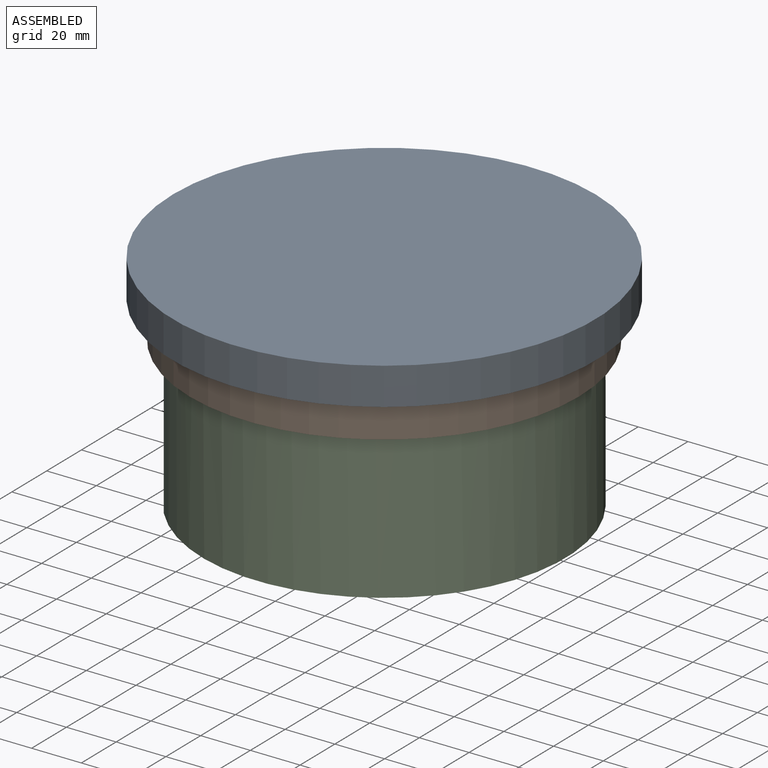
[diagram: assembled view]
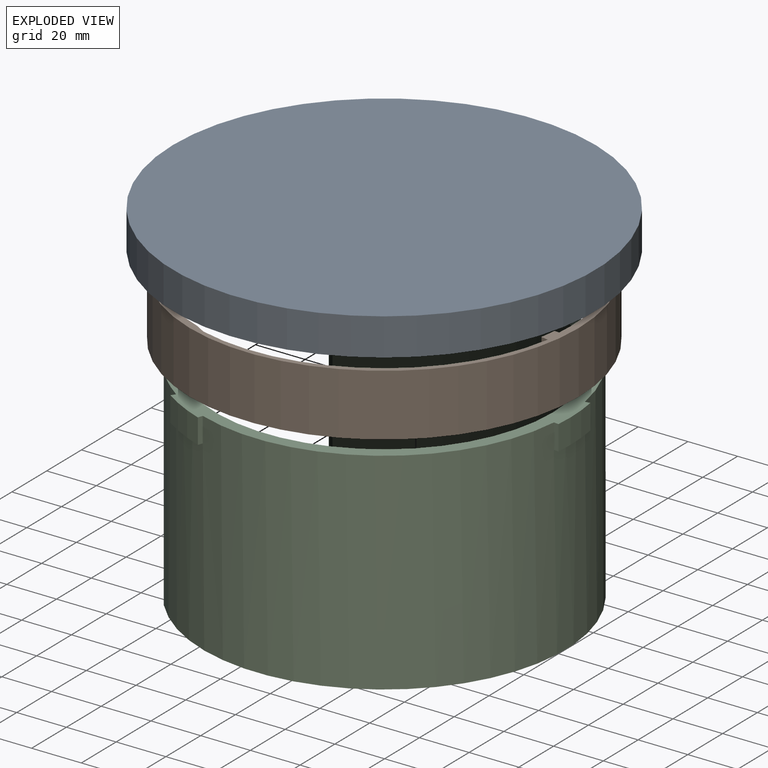
[diagram: exploded view]
GUIDED TOUR — MATED ASSEMBLY (Onshape document 2e85481039ae5bb83b8f77ce, AutoMate assembly 2e85481039ae5bb83b8f77ce_c5175f672cf2ef809be80cd3_7b0b176b4c2be2bc2b8a7882_default)

This assembly has 3 components, labeled P0..P2 below (a component is one placed occurrence of a part; the same part can appear more than once), held together by 2 mates. A mate is a constraint between two components; its type names the relative motion it leaves free:
  FASTENED — locks the two components together rigidly (no relative motion).
Axis/direction vectors are unit vectors and 'through' points are millimeter coordinates, both in the assembly's world frame.

MATES
  1. FASTENED "Fastened 2": P0 <-> P1, direction (0.000, 0.000, -1.000) through (111.84, -42.84, -48.95) mm
  2. FASTENED "Fastened 1": P1 <-> P2, direction (0.000, 0.000, 1.000) through (111.84, -42.84, -48.95) mm

ASSEMBLY ORDER
  1. P1 — the base component [order heuristic]
  2. P0 [order heuristic]
  3. P2 [order heuristic]
Order-tag legend:
  [order heuristic] — this assembly is geometrically interlocked (no collision-free removal order exists), so components are listed in mate-graph order; insertion feasibility is not verified.

Of the 3 components, 2 carry the full construction recipe — the FeatureScript program that regenerates the part's solid from scratch; the rest are supplied as boundary geometry only.
Each toured component is shown spotlighted twice — in the assembled view, then in the exploded view, where a leader line traces a displaced component back to its assembled socket (saturated green if recipe-attached, orange if geometry-only; every other component desaturated gray) — followed by its recipe or geometry summary and the mates that hold it.
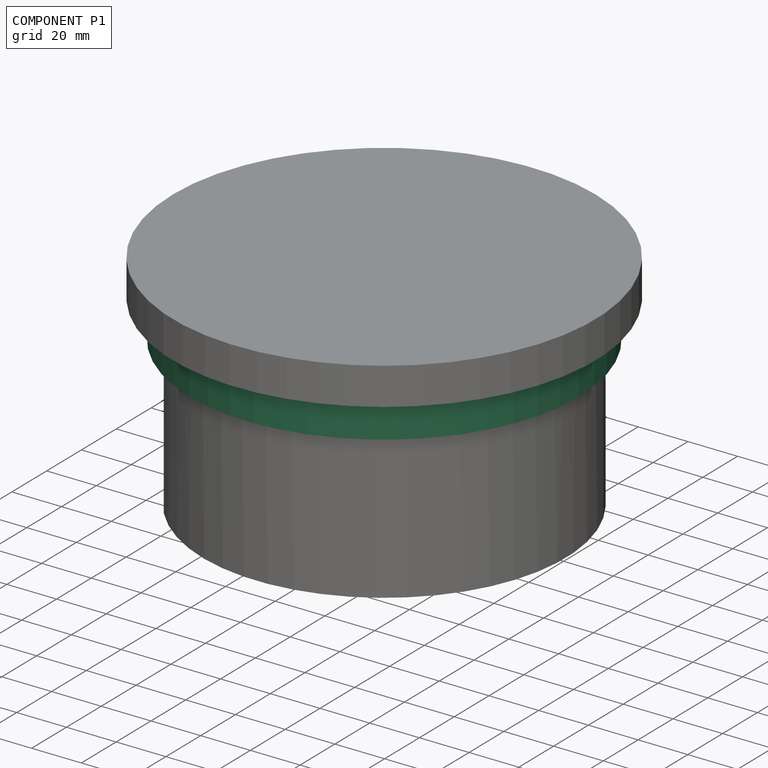
[diagram: component P1 — assembled]
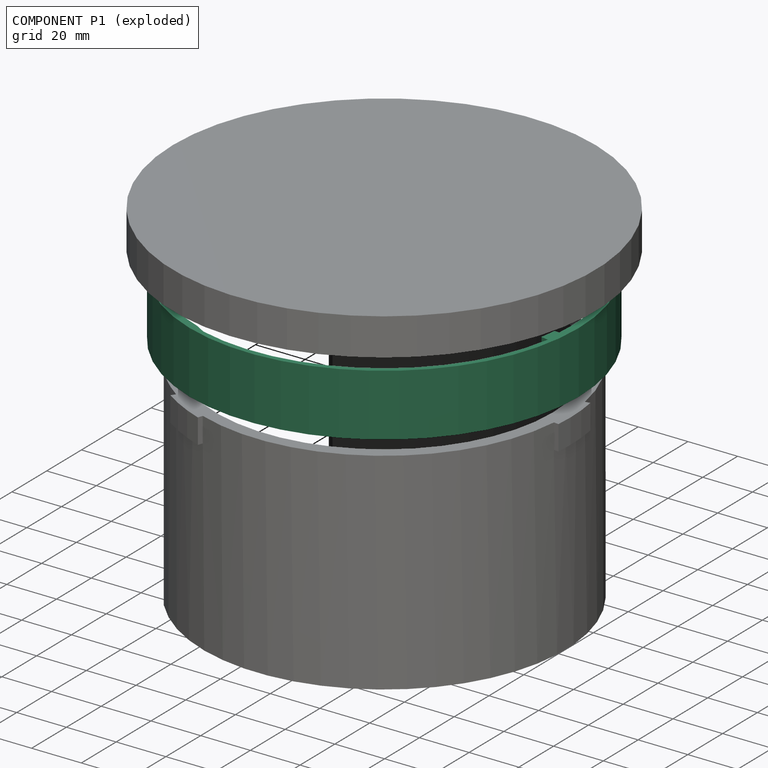
[diagram: component P1 — exploded]
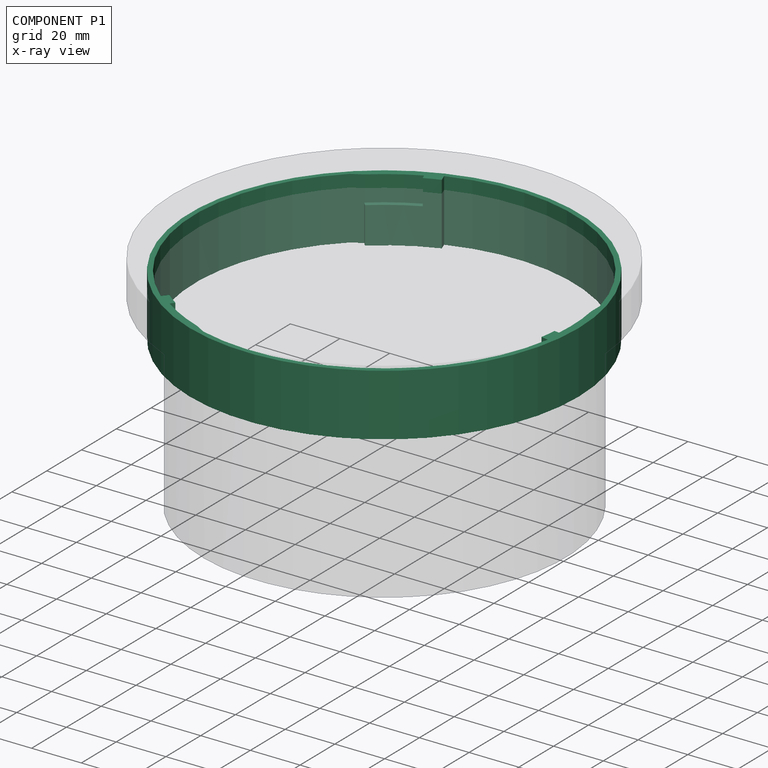
[diagram: component P1 — x-ray view]
COMPONENT P1 — recipe-attached (CADFS 00767659, mesh-verified: the recipe's output STEP matches this component's geometry to below the mesh-comparison resolution (tessellation chordal tolerance ~0.334 mm)).
Held by: FASTENED mate "Fastened 2" to P0; FASTENED mate "Fastened 1" to P2.
Construction recipe (FeatureScript — the CAD program that rebuilds this solid; sketch coordinates are in the units given by the * unit suffixes, e.g. mm):

FeatureScript 1511;
import(path : "onshape/std/geometry.fs", version : "1511.0");
import(path : "onshape/std/common.fs", version : "1511.0");
const mm = millimeter;
const VERTEX = EntityType.VERTEX;
const EDGE = EntityType.EDGE;
const FACE = EntityType.FACE;
const BODY = EntityType.BODY;
function v(x, y){return vector(x, y);}
function OD(order){return orderDisambiguation(order);}
function OSD(set){return originalSetDisambiguation(set);}
function TD(topology){return topologyDisambiguation(topology);}
function TDD(query){return trueDependencyDisambiguation(query);}
function sQuery(a, b, c) {return sketchEntityQuery(a, b, c);}

annotation { "Feature Type Name" : "Feature", "Feature Type Description" : "" }
export const myFeature = defineFeature(function(context is Context, id is Id, definition is map)
    precondition{}
    {
        {
            var Q0;
            Q0=qCreatedBy(makeId("Top.planeOp"),FACE);
            var sketch = newSketch(context, id + "F0", { "sketchPlane" : qUnion([Q0])});
            skArc(sketch, "E0", {"start": v(-31.8, 68.2) * mm, "mid": v(-40.43, 63.47) * mm, "end": v(-48.37, 57.64) * mm});
            skCircle(sketch, "E1", {"center": v(0, 0) * mm, "radius": 78.25 * mm});
            skArc(sketch, "E2", {"start": v(-25.05, 68.83) * mm, "mid": v(-36.63, 63.44) * mm, "end": v(-47.08, 56.11) * mm});
            skLineSegment(sketch, "E3", {"start": v(-47.08, 56.11) * mm, "end": v(-48.37, 57.64) * mm});
            skLineSegment(sketch, "E4", {"start": v(-48.37, 57.64) * mm, "end": v(-52.6, 55.2) * mm});
            skArc(sketch, "E5.trimOffspring", {"start": v(-52.6, 55.2) * mm, "mid": v(-76.21, -2.4) * mm, "end": v(-49.01, -58.41) * mm});
            skLineSegment(sketch, "E6", {"start": v(-25.05, 68.83) * mm, "end": v(-26.08, 71.65) * mm});
            skLineSegment(sketch, "E7", {"start": v(-31.8, 68.2) * mm, "end": v(-30.96, 66.39) * mm});
            skLineSegment(sketch, "E8.1.0", {"start": v(74.1, 13.07) * mm, "end": v(74.1, 17.95) * mm});
            skArc(sketch, "E8.1.1", {"start": v(74.96, -6.56) * mm, "mid": v(75.18, 3.28) * mm, "end": v(74.1, 13.07) * mm});
            skLineSegment(sketch, "E8.1.2", {"start": v(72.14, 12.72) * mm, "end": v(74.1, 13.07) * mm});
            skArc(sketch, "E8.1.3", {"start": v(72.14, -12.72) * mm, "mid": v(73.25, 0) * mm, "end": v(72.14, 12.72) * mm});
            skLineSegment(sketch, "E8.1.4", {"start": v(74.96, -6.56) * mm, "end": v(72.97, -6.38) * mm});
            skLineSegment(sketch, "E8.1.5", {"start": v(72.14, -12.72) * mm, "end": v(75.1, -13.24) * mm});
            skLineSegment(sketch, "E8.2.0", {"start": v(-25.74, -70.71) * mm, "end": v(-21.5, -73.15) * mm});
            skArc(sketch, "E8.2.1", {"start": v(-43.16, -61.64) * mm, "mid": v(-34.75, -66.75) * mm, "end": v(-25.74, -70.71) * mm});
            skLineSegment(sketch, "E8.2.2", {"start": v(-25.05, -68.83) * mm, "end": v(-25.74, -70.71) * mm});
            skArc(sketch, "E8.2.3", {"start": v(-47.08, -56.11) * mm, "mid": v(-36.62, -63.44) * mm, "end": v(-25.05, -68.83) * mm});
            skLineSegment(sketch, "E8.2.4", {"start": v(-43.16, -61.64) * mm, "end": v(-42.01, -60) * mm});
            skLineSegment(sketch, "E8.2.5", {"start": v(-47.08, -56.11) * mm, "end": v(-49.01, -58.41) * mm});
            skLineSegment(sketch, "E8.anchor1", {"start": v(0, 0) * mm, "end": v(-52.6, 55.2) * mm, "construction": true});
            skLineSegment(sketch, "E8.anchor2", {"start": v(0, 0) * mm, "end": v(-21.5, -73.15) * mm, "construction": true});
            skArc(sketch, "E9.trimOffspring", {"start": v(74.1, 17.95) * mm, "mid": v(36.02, 67.2) * mm, "end": v(-26.08, 71.65) * mm});
            skArc(sketch, "E10.trimOffspring", {"start": v(-21.5, -73.15) * mm, "mid": v(40.19, -64.8) * mm, "end": v(75.1, -13.24) * mm});
            skSolve(sketch);
        }
        {
            var Q0;
            Q0=makeQuery(id+"F0.imprint","IMPRINT",FACE,{"disambiguationData":[TD([[makeQuery(id+"F0.imprint","IMPRINT",EDGE,{"derivedFrom":sQuery(id+"F0.wireOp",EDGE,"E0")}),-1.0]])]});
            var Q1;
            Q1=makeQuery(id+"F0.imprint","IMPRINT",FACE,{"disambiguationData":[TD([[makeQuery(id+"F0.imprint","IMPRINT",EDGE,{"derivedFrom":sQuery(id+"F0.wireOp",EDGE,"E8.1.1")}),1.0]])]});
            var Q2;
            Q2=makeQuery(id+"F0.imprint","IMPRINT",FACE,{"disambiguationData":[TD([[makeQuery(id+"F0.imprint","IMPRINT",EDGE,{"derivedFrom":sQuery(id+"F0.wireOp",EDGE,"E8.2.1")}),1.0]])]});
            var Q3;
            Q3=makeQuery(id+"F0.imprint","IMPRINT",FACE,{"disambiguationData":[TD([[makeQuery(id+"F0.imprint","IMPRINT",EDGE,{"derivedFrom":sQuery(id+"F0.wireOp",EDGE,"E0")}),1.0]])]});
            extrude(context, id + "F1", {"entities" : qUnion([Q0, Q1, Q2, Q3]), "oppositeDirection" : true, "depth" : 25 * mm, "offsetDistance" : 25 * mm});
        }
        {
            var Q0;
            Q0=makeQuery(id+"F0.imprint","IMPRINT",FACE,{"disambiguationData":[TD([[makeQuery(id+"F0.imprint","IMPRINT",EDGE,{"derivedFrom":sQuery(id+"F0.wireOp",EDGE,"E8.1.1")}),1.0]])]});
            var Q1;
            Q1=makeQuery(id+"F0.imprint","IMPRINT",FACE,{"disambiguationData":[TD([[makeQuery(id+"F0.imprint","IMPRINT",EDGE,{"derivedFrom":sQuery(id+"F0.wireOp",EDGE,"E0")}),1.0]])]});
            var Q2;
            Q2=makeQuery(id+"F0.imprint","IMPRINT",FACE,{"disambiguationData":[TD([[makeQuery(id+"F0.imprint","IMPRINT",EDGE,{"derivedFrom":sQuery(id+"F0.wireOp",EDGE,"E8.2.1")}),1.0]])]});
            extrude(context, id + "F2", {"entities" : qUnion([Q0, Q1, Q2]), "operationType" : NewBodyOperationType.REMOVE, "oppositeDirection" : true, "depth" : 10.25 * mm, "offsetDistance" : 25 * mm});
        }
    });
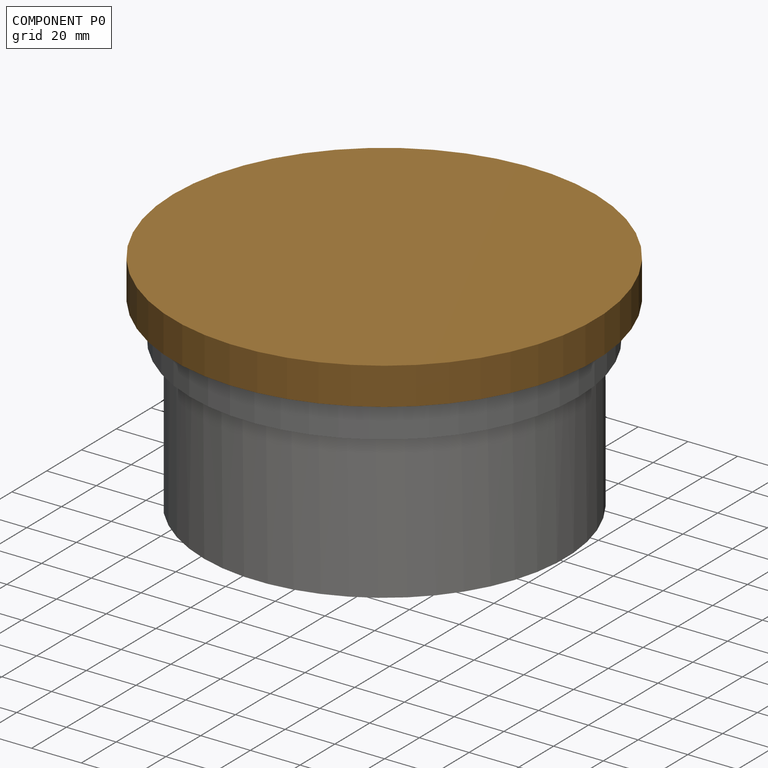
[diagram: component P0 — assembled]
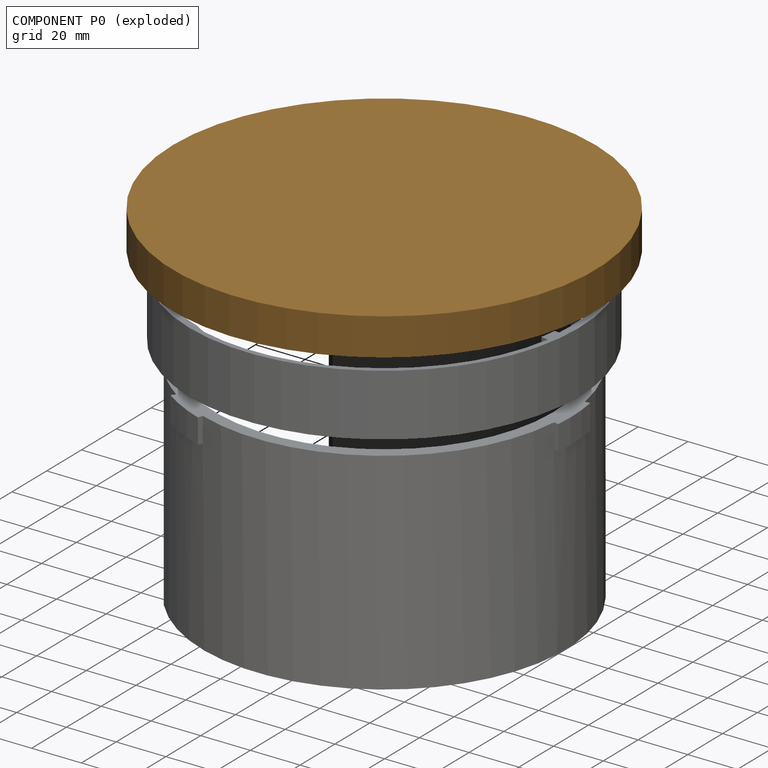
[diagram: component P0 — exploded]
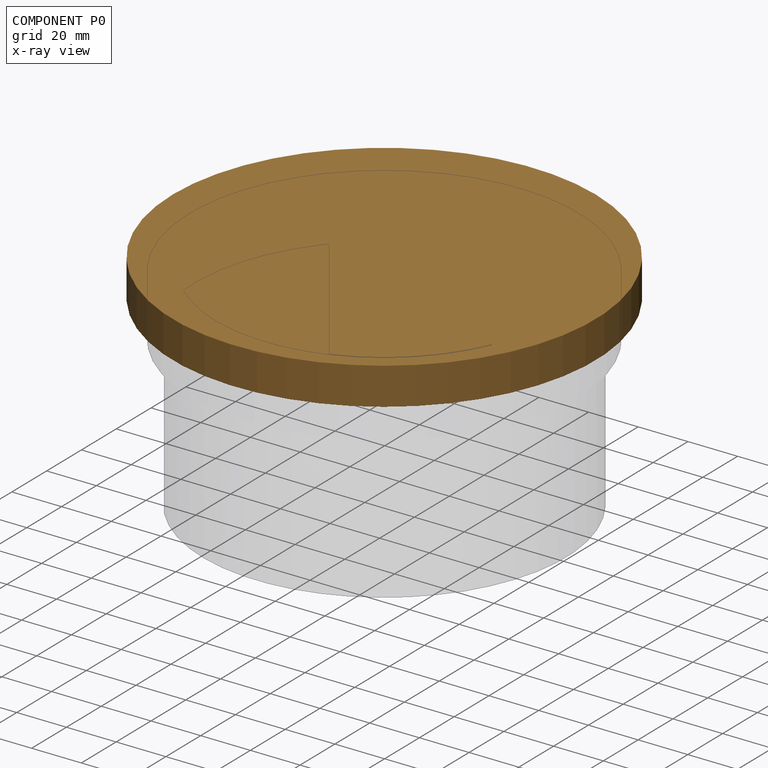
[diagram: component P0 — x-ray view]
COMPONENT P0 — geometry summary (no construction recipe available for this part):
  bounding box: 170.0 x 170.0 x 15.0 mm
  B-rep topology: 1 solid, 31 faces, 138 edges
  volume: 123079 mm^3 (28% of its bounding box)
Held by: FASTENED mate "Fastened 2" to P1.
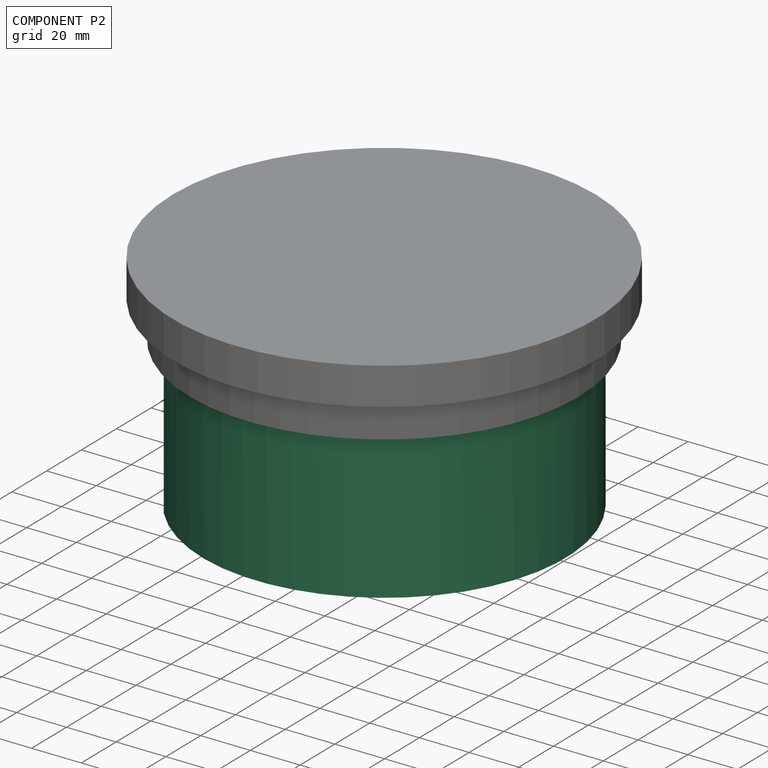
[diagram: component P2 — assembled]
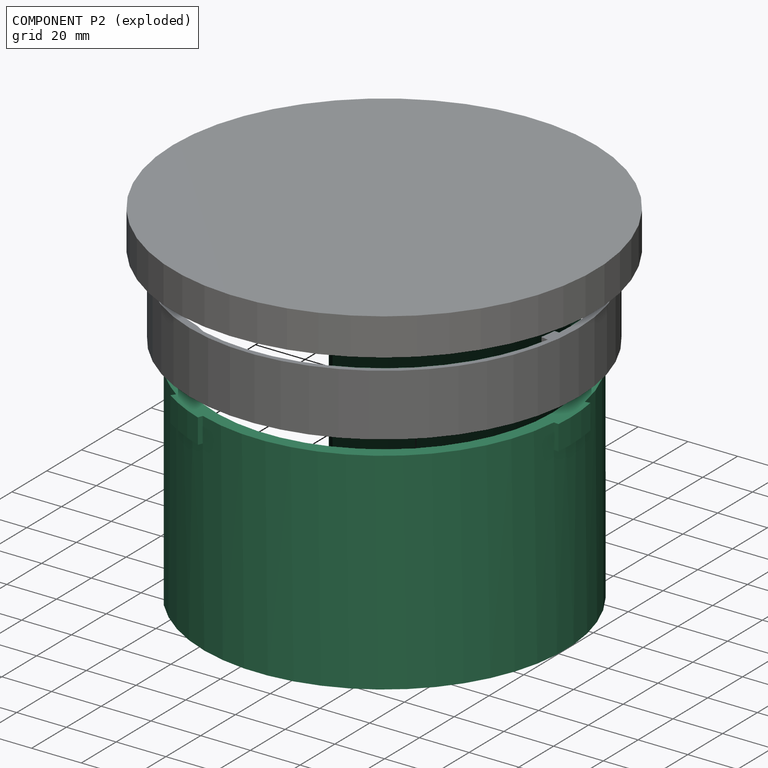
[diagram: component P2 — exploded]
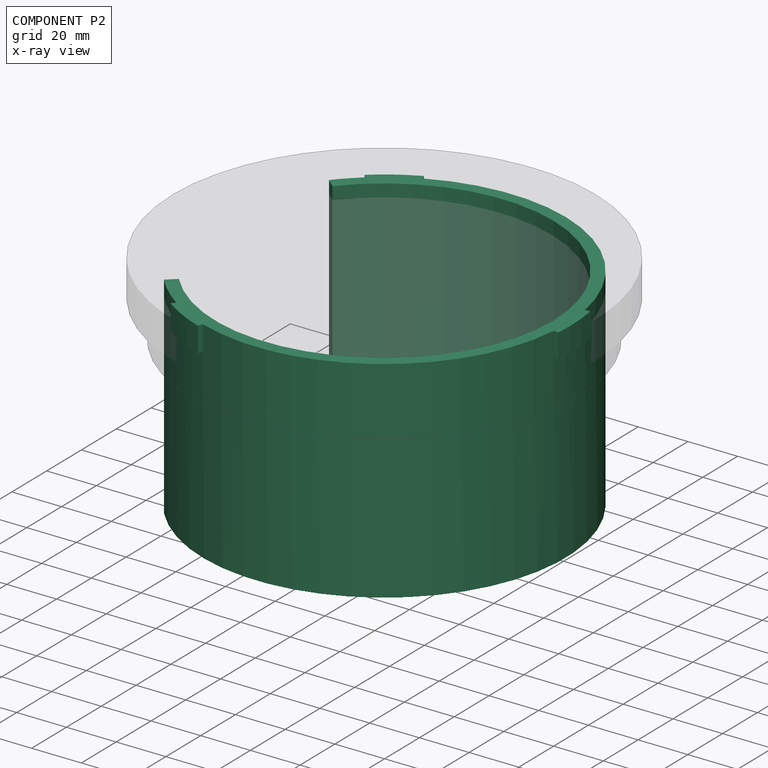
[diagram: component P2 — x-ray view]
COMPONENT P2 — recipe-attached (CADFS 00767663, mesh-verified: the recipe's output STEP matches this component's geometry to below the mesh-comparison resolution (tessellation chordal tolerance ~0.32 mm)).
Held by: FASTENED mate "Fastened 1" to P1.
Construction recipe (FeatureScript — the CAD program that rebuilds this solid; sketch coordinates are in the units given by the * unit suffixes, e.g. mm):

FeatureScript 1511;
import(path : "onshape/std/geometry.fs", version : "1511.0");
import(path : "onshape/std/common.fs", version : "1511.0");
const mm = millimeter;
const VERTEX = EntityType.VERTEX;
const EDGE = EntityType.EDGE;
const FACE = EntityType.FACE;
const BODY = EntityType.BODY;
function v(x, y){return vector(x, y);}
function OD(order){return orderDisambiguation(order);}
function OSD(set){return originalSetDisambiguation(set);}
function TD(topology){return topologyDisambiguation(topology);}
function TDD(query){return trueDependencyDisambiguation(query);}
function sQuery(a, b, c) {return sketchEntityQuery(a, b, c);}

annotation { "Feature Type Name" : "Feature", "Feature Type Description" : "" }
export const myFeature = defineFeature(function(context is Context, id is Id, definition is map)
    precondition{}
    {
        {
            var Q0;
            Q0=qCreatedBy(makeId("Front.planeOp"),FACE);
            var sketch = newSketch(context, id + "F0", { "sketchPlane" : qUnion([Q0])});
            skLineSegment(sketch, "E0", {"start": v(-73, 0) * mm, "end": v(-73, -85) * mm});
            skLineSegment(sketch, "E1", {"start": v(-68, -85) * mm, "end": v(-68, 0) * mm});
            skLineSegment(sketch, "E2", {"start": v(-68, 0) * mm, "end": v(-73, 0) * mm});
            skLineSegment(sketch, "E3", {"start": v(-73, -85) * mm, "end": v(-71.5, -85) * mm});
            skLineSegment(sketch, "E4", {"start": v(-71.5, -85) * mm, "end": v(-71.5, -84) * mm});
            skLineSegment(sketch, "E5", {"start": v(-71.5, -84) * mm, "end": v(-69.5, -84) * mm});
            skLineSegment(sketch, "E6", {"start": v(-69.5, -84) * mm, "end": v(-69.5, -85) * mm});
            skLineSegment(sketch, "E7", {"start": v(-69.5, -85) * mm, "end": v(-68, -85) * mm});
            skLineSegment(sketch, "E8", {"start": v(0, 0) * mm, "end": v(0, -24.91) * mm, "construction": true});
            skSolve(sketch);
        }
        {
            var Q0;
            Q0=makeQuery(id+"F0.imprint","IMPRINT",FACE,{"disambiguationData":[TD([[makeQuery(id+"F0.imprint","IMPRINT",EDGE,{"derivedFrom":sQuery(id+"F0.wireOp",EDGE,"E0")}),1.0]])]});
            var Q1;
            Q1=sQuery(id+"F0.wireOp",EDGE,"E8");
            revolve(context, id + "F1", {"surfaceOperationType" : NewSurfaceOperationType.NEW, "entities" : qUnion([Q0]), "axis" : qUnion([Q1]), "revolveType" : RevolveType.FULL});
        }
        {
            var Q0;
            Q0=makeQuery(id+"F1.opRevolve","SWEPT_FACE",FACE,{"disambiguationData":[OSD([sQuery(id+"F0.wireOp",EDGE,"E2")])]});
            var sketch = newSketch(context, id + "F2", { "sketchPlane" : qUnion([Q0])});
            skArc(sketch, "E9", {"start": v(-24.97, -68.6) * mm, "mid": v(-33.7, -64.75) * mm, "end": v(-41.87, -59.8) * mm});
            skArc(sketch, "E10", {"start": v(-43.02, -61.44) * mm, "mid": v(-34.63, -66.53) * mm, "end": v(-25.65, -70.48) * mm});
            skLineSegment(sketch, "E11", {"start": v(-24.97, -68.6) * mm, "end": v(-25.65, -70.48) * mm});
            skLineSegment(sketch, "E12", {"start": v(-43.02, -61.44) * mm, "end": v(-41.87, -59.8) * mm});
            skArc(sketch, "E13.1.0", {"start": v(71.9, 12.68) * mm, "mid": v(72.93, 3.18) * mm, "end": v(72.72, -6.36) * mm});
            skArc(sketch, "E13.1.1", {"start": v(74.71, -6.54) * mm, "mid": v(74.93, 3.27) * mm, "end": v(73.86, 13.02) * mm});
            skLineSegment(sketch, "E13.1.2", {"start": v(74.71, -6.54) * mm, "end": v(72.72, -6.36) * mm});
            skLineSegment(sketch, "E13.1.3", {"start": v(71.9, 12.68) * mm, "end": v(73.86, 13.02) * mm});
            skArc(sketch, "E13.2.0", {"start": v(-46.92, 55.92) * mm, "mid": v(-39.22, 61.57) * mm, "end": v(-30.85, 66.16) * mm});
            skArc(sketch, "E13.2.1", {"start": v(-31.7, 67.97) * mm, "mid": v(-40.3, 63.25) * mm, "end": v(-48.2, 57.45) * mm});
            skLineSegment(sketch, "E13.2.2", {"start": v(-31.7, 67.97) * mm, "end": v(-30.85, 66.16) * mm});
            skLineSegment(sketch, "E13.2.3", {"start": v(-46.92, 55.92) * mm, "end": v(-48.2, 57.45) * mm});
            skLineSegment(sketch, "E13.anchor1", {"start": v(0, 0) * mm, "end": v(-43.02, -61.44) * mm, "construction": true});
            skLineSegment(sketch, "E13.anchor2", {"start": v(0, 0) * mm, "end": v(-31.7, 67.97) * mm, "construction": true});
            skSolve(sketch);
        }
        {
            var Q0;
            Q0 = qSketchRegion(id + "F2", true);
            extrude(context, id + "F3", {"entities" : qUnion([Q0]), "operationType" : NewBodyOperationType.ADD, "oppositeDirection" : true, "depth" : 10 * mm, "offsetDistance" : 25 * mm});
        }
        {
            var Q0;
            Q0=makeQuery(id+"F3.boolean.opBoolean","MERGE",FACE,{"derivedFrom":[makeQuery(id+"F1.opRevolve","SWEPT_FACE",FACE,{"disambiguationData":[OSD([sQuery(id+"F0.wireOp",EDGE,"E2")])]}),makeQuery(id+"F3.opExtrude","CAP_FACE",FACE,{"disambiguationData":[OSD([sQuery(id+"F2.wireOp",EDGE,"E9"),sQuery(id+"F2.wireOp",EDGE,"E10"),sQuery(id+"F2.wireOp",EDGE,"E11"),sQuery(id+"F2.wireOp",EDGE,"E12")])],"isStart":true}),makeQuery(id+"F3.opExtrude","CAP_FACE",FACE,{"disambiguationData":[OSD([sQuery(id+"F2.wireOp",EDGE,"6ce37acd-3d40-4e89-9611-b017ba45b80d.1.0"),sQuery(id+"F2.wireOp",EDGE,"6ce37acd-3d40-4e89-9611-b017ba45b80d.1.1"),sQuery(id+"F2.wireOp",EDGE,"6ce37acd-3d40-4e89-9611-b017ba45b80d.1.2"),sQuery(id+"F2.wireOp",EDGE,"6ce37acd-3d40-4e89-9611-b017ba45b80d.1.3")])],"isStart":true}),makeQuery(id+"F3.opExtrude","CAP_FACE",FACE,{"disambiguationData":[OSD([sQuery(id+"F2.wireOp",EDGE,"6ce37acd-3d40-4e89-9611-b017ba45b80d.2.0"),sQuery(id+"F2.wireOp",EDGE,"6ce37acd-3d40-4e89-9611-b017ba45b80d.2.1"),sQuery(id+"F2.wireOp",EDGE,"6ce37acd-3d40-4e89-9611-b017ba45b80d.2.2"),sQuery(id+"F2.wireOp",EDGE,"6ce37acd-3d40-4e89-9611-b017ba45b80d.2.3")])],"isStart":true}),makeQuery(id+"F3.opExtrude","CAP_FACE",FACE,{"disambiguationData":[OSD([sQuery(id+"F2.wireOp",EDGE,"6ce37acd-3d40-4e89-9611-b017ba45b80d.3.0"),sQuery(id+"F2.wireOp",EDGE,"6ce37acd-3d40-4e89-9611-b017ba45b80d.3.1"),sQuery(id+"F2.wireOp",EDGE,"6ce37acd-3d40-4e89-9611-b017ba45b80d.3.2"),sQuery(id+"F2.wireOp",EDGE,"6ce37acd-3d40-4e89-9611-b017ba45b80d.3.3")])],"isStart":true})]});
            var sketch = newSketch(context, id + "F4", { "sketchPlane" : qUnion([Q0])});
            skArc(sketch, "E14", {"start": v(-55.5, -47.4) * mm, "mid": v(-73, 0) * mm, "end": v(-55.5, 47.4) * mm});
            skArc(sketch, "E15", {"start": v(-51.7, -44.16) * mm, "mid": v(-68, 0) * mm, "end": v(-51.7, 44.16) * mm});
            skLineSegment(sketch, "E16", {"start": v(-51.7, -44.16) * mm, "end": v(-55.5, -47.4) * mm});
            skLineSegment(sketch, "E17", {"start": v(-51.7, 44.16) * mm, "end": v(-55.5, 47.4) * mm});
            skSolve(sketch);
        }
        {
            var Q0;
            Q0 = qSketchRegion(id + "F4", true);
            var Q1;
            Q1=makeQuery(id+"F1.opRevolve","SWEPT_FACE",FACE,{"disambiguationData":[OSD([sQuery(id+"F0.wireOp",EDGE,"E3")])]});
            extrude(context, id + "F5", {"entities" : qUnion([Q0]), "operationType" : NewBodyOperationType.REMOVE, "endBound" : BoundingType.UP_TO_SURFACE, "oppositeDirection" : true, "depth" : 25 * mm, "endBoundEntityFace" : qUnion([Q1]), "offsetDistance" : 25 * mm});
        }
    });
PROVENANCE & LICENSES
Assembly (occurrences, transforms, mates, per-part STEP geometry): AutoMate dataset, Zenodo record 7776208, CC0.
Construction recipes: CADFS (HuggingFace VladPyatov/CADFS, CC-BY-4.0, layered over the ABC dataset), FeatureScript reconstruction programs keyed by ABC model id.
Join: ABC meta listings map ABC model id -> Onshape documentId; within a shared document, parts are matched by geometric signature (bounding-box dims + volume at 0.1% relative tolerance, exact B-rep face/solid counts).
Verification: 2 of this assembly's 3 components carry a recipe attachment, and every attachment is mesh-verified: the CADFS STEP and the AutoMate member STEP were compared as meshes in their shared local frame (symmetric sampled-point-to-mesh distance); worst across the 2 attachments: below the mesh-comparison resolution (tessellation chordal tolerance ~0.334 mm) on a 223 mm part.
Renders: orthographic iso camera (az 35 / el 25); the floor grid conveys scale (grid pitch printed in each image; no ruler). In the exploded view each component is displaced by its stored offset vector: the offsets alone carry the explosion direction (mate normal/axis signs are not orientation cues and do not encode it), and separation distances are assigned per mate-chain, not proportionally to assembly-order depth.
